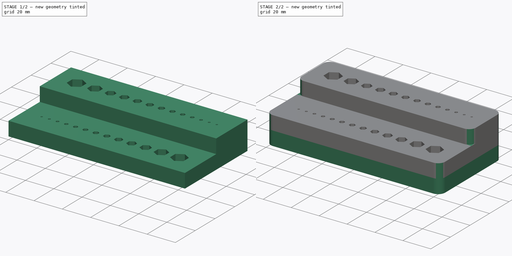
[diagram: build sequence overview — one tinted view per stage of 2, left to right]
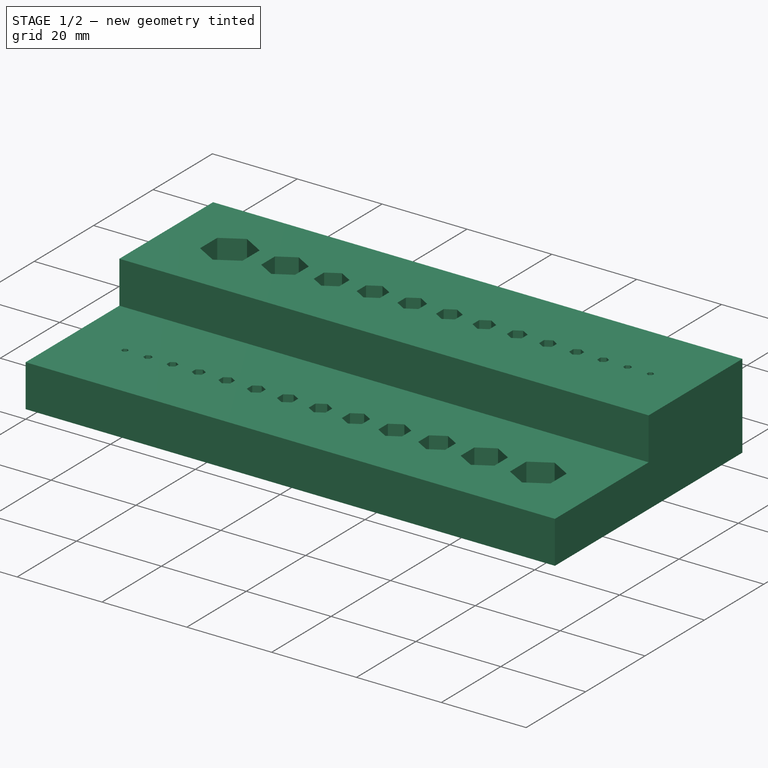
[diagram: stage 1 of 2 — iso view after this stage's code; geometry added in this stage tinted green]
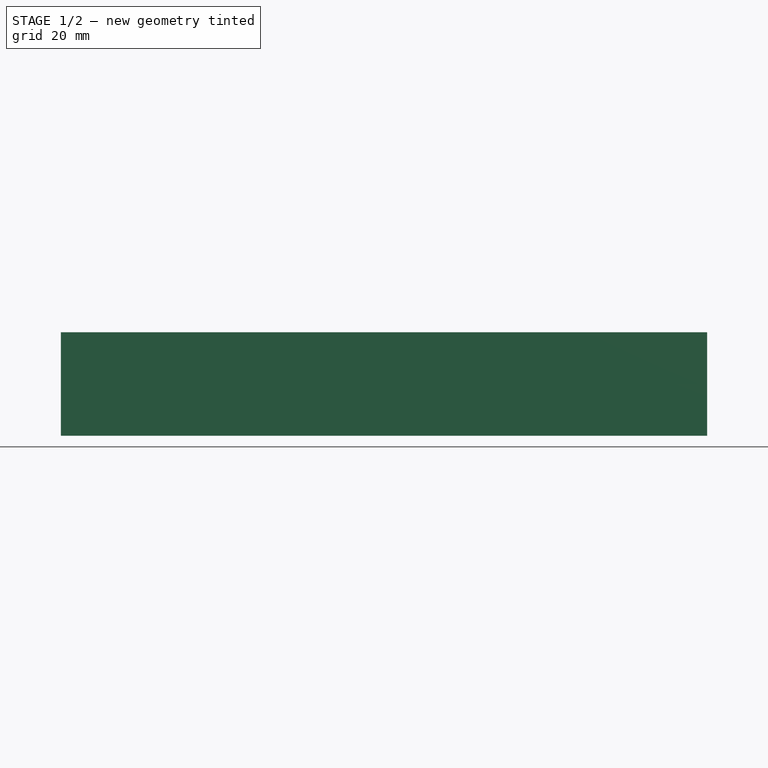
[diagram: stage 1 of 2 — front view after this stage's code; geometry added in this stage tinted green]
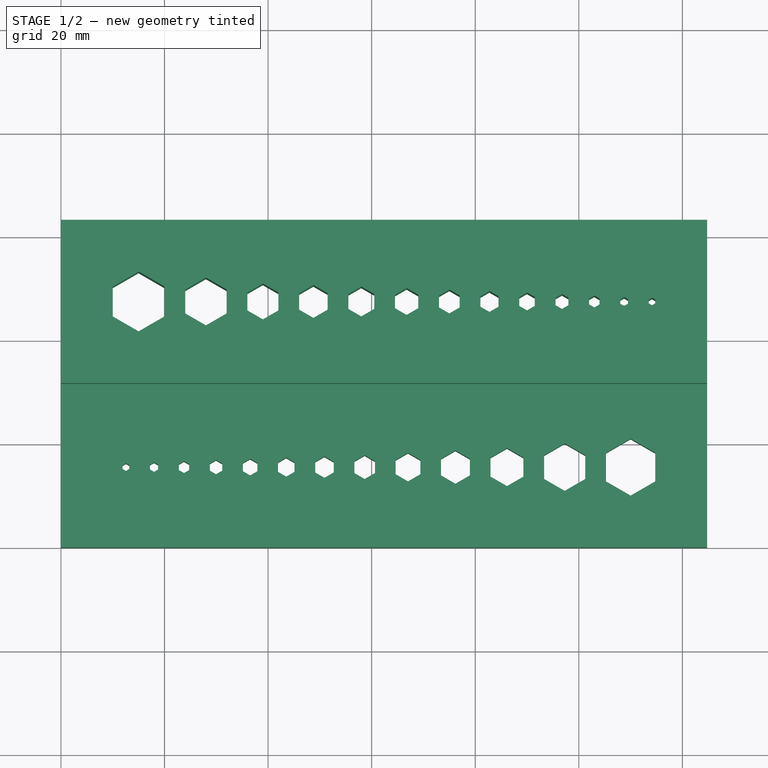
[diagram: stage 1 of 2 — top view after this stage's code; geometry added in this stage tinted green]
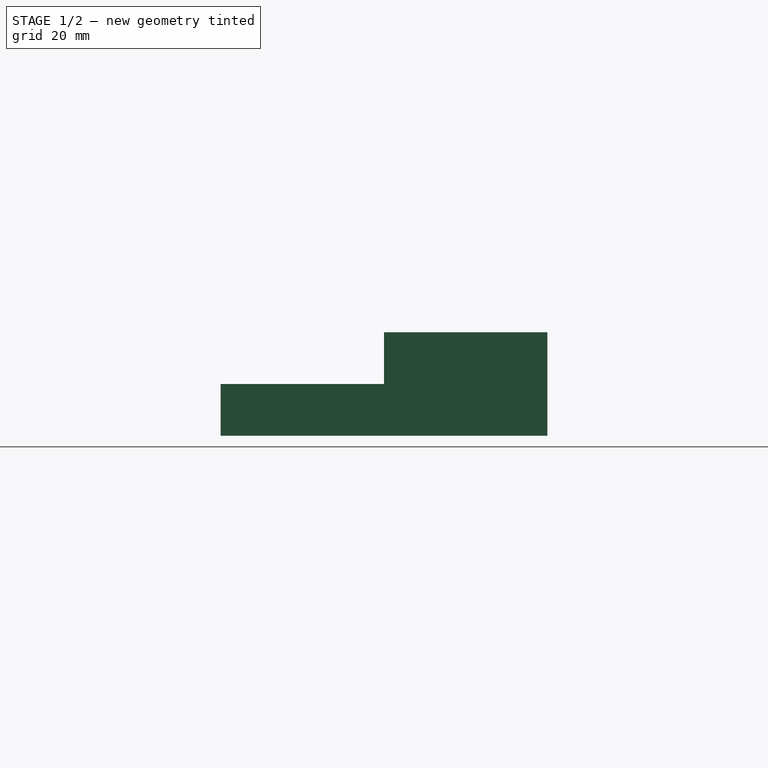
[diagram: stage 1 of 2 — right view after this stage's code; geometry added in this stage tinted green]
FCSTD DOCUMENT  (FreeCAD 0.19R23578 (Git))
Label: allen_caddy
License: All rights reserved
LicenseURL: http://en.wikipedia.org/wiki/All_rights_reserved
objects: Sketcher::SketchObject×3, PartDesign::Pad×2, Spreadsheet::Sheet×1, PartDesign::Pocket×1, PartDesign::Fillet×1, PartDesign::Body×1
note: 12 computed .brp shape members not serialized (recipe doc carries the construction recipe); baked Part::Feature solids carry a one-line shape summary decoded from their .brp

FEATURE [Sketcher::SketchObject] Sketch  label="Caddy Sketch"
  MapMode = 5
  Support = -> [XY_Plane]
  expr: Constraints[676] = <<Spreadsheet>>.SEPARATION
  expr: Constraints[274] = <<Spreadsheet>>.SEPARATION
  expr: Constraints[271] = <<Spreadsheet>>.SEPARATION
  expr: Constraints[679] = <<Spreadsheet>>.SEPARATION
  expr: Constraints[567] = 7 / 32 * 1in
  expr: Constraints[668] = 1 / 16 * 1in
  expr: Constraints[673] = <<Spreadsheet>>.SEPARATION
  expr: Constraints[570] = 9 / 64 * 1in
  expr: Constraints[669] = 0.05in
  expr: Constraints[573] = <<Spreadsheet>>.SEPARATION
  expr: Constraints[280] = <<Spreadsheet>>.SEPARATION
  expr: Constraints[275] = <<Spreadsheet>>.SEPARATION
  expr: Constraints[285] = <<Spreadsheet>>.BORDER
  expr: Constraints[282] = <<Spreadsheet>>.SEPARATION
  expr: Constraints[276] = <<Spreadsheet>>.SEPARATION
  expr: Constraints[447] = <<Spreadsheet>>.BORDER
  expr: Constraints[281] = <<Spreadsheet>>.SEPARATION
  expr: Constraints[666] = 3 / 32 * 1in
  expr: Constraints[270] = <<Spreadsheet>>.BORDER
  expr: Constraints[284] = <<Spreadsheet>>.BORDER
  expr: Constraints[449] = 1 / 4 * 1in
  expr: Constraints[273] = <<Spreadsheet>>.SEPARATION
  expr: Constraints[312] = 3 / 8 * 1in
  expr: Constraints[445] = <<Spreadsheet>>.BORDER
  expr: Constraints[278] = <<Spreadsheet>>.SEPARATION
  expr: Constraints[677] = <<Spreadsheet>>.SEPARATION
  expr: Constraints[279] = <<Spreadsheet>>.SEPARATION
  expr: Constraints[450] = <<Spreadsheet>>.SEPARATION
  expr: Constraints[283] = <<Spreadsheet>>.BORDER
  expr: Constraints[444] = 5 / 16 * 1in
  expr: Constraints[451] = <<Spreadsheet>>.SEPARATION
  expr: Constraints[568] = 3 / 16 * 1in
  expr: Constraints[272] = <<Spreadsheet>>.SEPARATION
  expr: Constraints[569] = 5 / 32 * 1in
  expr: Constraints[572] = <<Spreadsheet>>.SEPARATION
  expr: Constraints[571] = 1 / 8 * 1in
  expr: Constraints[667] = 5 / 64 * 1in
  expr: Constraints[574] = <<Spreadsheet>>.SEPARATION
  expr: Constraints[277] = <<Spreadsheet>>.SEPARATION
  expr: Constraints[575] = <<Spreadsheet>>.SEPARATION
  expr: Constraints[576] = <<Spreadsheet>>.SEPARATION
  expr: Constraints[671] = <<Spreadsheet>>.SEPARATION
  expr: Constraints[577] = 7 / 64 * 1in
  sketch-geometry (218):
    g0: LineSegment StartX=0 StartY=0 StartZ=0 EndX=124.77 EndY=0 EndZ=0
    g1: LineSegment StartX=124.77 StartY=0 StartZ=0 EndX=124.77 EndY=31.547 EndZ=0
    g2: LineSegment StartX=124.77 StartY=31.547 StartZ=0 EndX=0 EndY=31.547 EndZ=0
    g3: LineSegment StartX=0 StartY=31.547 StartZ=0 EndX=0 EndY=0 EndZ=0
    g4: LineSegment StartX=0 StartY=63.094 StartZ=0 EndX=124.77 EndY=63.094 EndZ=0
    g5: LineSegment StartX=124.77 StartY=63.094 StartZ=0 EndX=124.77 EndY=31.547 EndZ=0
    g6: LineSegment StartX=124.77 StartY=31.547 StartZ=0 EndX=0 EndY=31.547 EndZ=0
    g7: LineSegment StartX=0 StartY=31.547 StartZ=0 EndX=0 EndY=63.094 EndZ=0
    g8: LineSegment StartX=20 StartY=44.4338 StartZ=0 EndX=20 EndY=50.2073 EndZ=0
    g9: LineSegment StartX=20 StartY=50.2073 StartZ=0 EndX=15 EndY=53.094 EndZ=0
    g10: LineSegment StartX=15 StartY=53.094 StartZ=0 EndX=10 EndY=50.2073 EndZ=0
    g11: LineSegment StartX=10 StartY=50.2073 StartZ=0 EndX=10 EndY=44.4338 EndZ=0
    g12: LineSegment StartX=10 StartY=44.4338 StartZ=0 EndX=15 EndY=41.547 EndZ=0
    g13: LineSegment StartX=15 StartY=41.547 StartZ=0 EndX=20 EndY=44.4338 EndZ=0
    g14: Circle CenterX=15 CenterY=47.3205 CenterZ=0 NormalX=0 NormalY=0 NormalZ=1 AngleXU=0 Radius=5.7735
    g15: LineSegment StartX=32 StartY=45.0111 StartZ=0 EndX=32 EndY=49.6299 EndZ=0
    g16: LineSegment StartX=32 StartY=49.6299 StartZ=0 EndX=28 EndY=51.9393 EndZ=0
    g17: LineSegment StartX=28 StartY=51.9393 StartZ=0 EndX=24 EndY=49.6299 EndZ=0
    g18: LineSegment StartX=24 StartY=49.6299 StartZ=0 EndX=24 EndY=45.0111 EndZ=0
    g19: LineSegment StartX=24 StartY=45.0111 StartZ=0 EndX=28 EndY=42.7017 EndZ=0
    g20: LineSegment StartX=28 StartY=42.7017 StartZ=0 EndX=32 EndY=45.0111 EndZ=0
    g21: Circle CenterX=28 CenterY=47.3205 CenterZ=0 NormalX=0 NormalY=0 NormalZ=1 AngleXU=0 Radius=4.6188
    g22: LineSegment StartX=42 StartY=45.5885 StartZ=0 EndX=42 EndY=49.0526 EndZ=0
    g23: LineSegment StartX=42 StartY=49.0526 StartZ=0 EndX=39 EndY=50.7846 EndZ=0
    g24: LineSegment StartX=39 StartY=50.7846 StartZ=0 EndX=36 EndY=49.0526 EndZ=0
    g25: LineSegment StartX=36 StartY=49.0526 StartZ=0 EndX=36 EndY=45.5885 EndZ=0
    g26: LineSegment StartX=36 StartY=45.5885 StartZ=0 EndX=39 EndY=43.8564 EndZ=0
    g27: LineSegment StartX=39 StartY=43.8564 StartZ=0 EndX=42 EndY=45.5885 EndZ=0
    g28: Circle CenterX=39 CenterY=47.3205 CenterZ=0 NormalX=0 NormalY=0 NormalZ=1 AngleXU=0 Radius=3.4641
    g29: LineSegment StartX=51.5 StartY=45.7328 StartZ=0 EndX=51.5 EndY=48.9082 EndZ=0
    g30: LineSegment StartX=51.5 StartY=48.9082 StartZ=0 EndX=48.75 EndY=50.4959 EndZ=0
    g31: LineSegment StartX=48.75 StartY=50.4959 StartZ=0 EndX=46 EndY=48.9082 EndZ=0
    g32: LineSegment StartX=46 StartY=48.9082 StartZ=0 EndX=46 EndY=45.7328 EndZ=0
    g33: LineSegment StartX=46 StartY=45.7328 StartZ=0 EndX=48.75 EndY=44.1451 EndZ=0
    g34: LineSegment StartX=48.75 StartY=44.1451 StartZ=0 EndX=51.5 EndY=45.7328 EndZ=0
    g35: Circle CenterX=48.75 CenterY=47.3205 CenterZ=0 NormalX=0 NormalY=0 NormalZ=1 AngleXU=0 Radius=3.17543
    g36: LineSegment StartX=60.5 StartY=45.8771 StartZ=0 EndX=60.5 EndY=48.7639 EndZ=0
    g37: LineSegment StartX=60.5 StartY=48.7639 StartZ=0 EndX=58 EndY=50.2073 EndZ=0
    g38: LineSegment StartX=58 StartY=50.2073 StartZ=0 EndX=55.5 EndY=48.7639 EndZ=0
    g39: LineSegment StartX=55.5 StartY=48.7639 StartZ=0 EndX=55.5 EndY=45.8771 EndZ=0
    g40: LineSegment StartX=55.5 StartY=45.8771 StartZ=0 EndX=58 EndY=44.4338 EndZ=0
    g41: LineSegment StartX=58 StartY=44.4338 StartZ=0 EndX=60.5 EndY=45.8771 EndZ=0
    g42: Circle CenterX=58 CenterY=47.3205 CenterZ=0 NormalX=0 NormalY=0 NormalZ=1 AngleXU=0 Radius=2.88675
    g43: LineSegment StartX=69 StartY=46.0215 StartZ=0 EndX=69 EndY=48.6195 EndZ=0
    g44: LineSegment StartX=69 StartY=48.6195 StartZ=0 EndX=66.75 EndY=49.9186 EndZ=0
    g45: LineSegment StartX=66.75 StartY=49.9186 StartZ=0 EndX=64.5 EndY=48.6195 EndZ=0
    g46: LineSegment StartX=64.5 StartY=48.6195 StartZ=0 EndX=64.5 EndY=46.0215 EndZ=0
    g47: LineSegment StartX=64.5 StartY=46.0215 StartZ=0 EndX=66.75 EndY=44.7224 EndZ=0
    g48: LineSegment StartX=66.75 StartY=44.7224 StartZ=0 EndX=69 EndY=46.0215 EndZ=0
    g49: Circle CenterX=66.75 CenterY=47.3205 CenterZ=0 NormalX=0 NormalY=0 NormalZ=1 AngleXU=0 Radius=2.59808
    g50: LineSegment StartX=77 StartY=46.1658 StartZ=0 EndX=77 EndY=48.4752 EndZ=0
    g51: LineSegment StartX=77 StartY=48.4752 StartZ=0 EndX=75 EndY=49.6299 EndZ=0
    g52: LineSegment StartX=75 StartY=49.6299 StartZ=0 EndX=73 EndY=48.4752 EndZ=0
    g53: LineSegment StartX=73 StartY=48.4752 StartZ=0 EndX=73 EndY=46.1658 EndZ=0
    g54: LineSegment StartX=73 StartY=46.1658 StartZ=0 EndX=75 EndY=45.0111 EndZ=0
    g55: LineSegment StartX=75 StartY=45.0111 StartZ=0 EndX=77 EndY=46.1658 EndZ=0
    g56: Circle CenterX=75 CenterY=47.3205 CenterZ=0 NormalX=0 NormalY=0 NormalZ=1 AngleXU=0 Radius=2.3094
    g57: LineSegment StartX=84.5 StartY=46.3101 StartZ=0 EndX=84.5 EndY=48.3309 EndZ=0
    g58: LineSegment StartX=84.5 StartY=48.3309 StartZ=0 EndX=82.75 EndY=49.3412 EndZ=0
    g59: LineSegment StartX=82.75 StartY=49.3412 StartZ=0 EndX=81 EndY=48.3309 EndZ=0
    g60: LineSegment StartX=81 StartY=48.3309 StartZ=0 EndX=81 EndY=46.3101 EndZ=0
    g61: LineSegment StartX=81 StartY=46.3101 StartZ=0 EndX=82.75 EndY=45.2998 EndZ=0
    g62: LineSegment StartX=82.75 StartY=45.2998 StartZ=0 EndX=84.5 EndY=46.3101 EndZ=0
    g63: Circle CenterX=82.75 CenterY=47.3205 CenterZ=0 NormalX=0 NormalY=0 NormalZ=1 AngleXU=0 Radius=2.02073
    g64: LineSegment StartX=91.5 StartY=46.4545 StartZ=0 EndX=91.5 EndY=48.1865 EndZ=0
    g65: LineSegment StartX=91.5 StartY=48.1865 StartZ=0 EndX=90 EndY=49.0526 EndZ=0
    g66: LineSegment StartX=90 StartY=49.0526 StartZ=0 EndX=88.5 EndY=48.1865 EndZ=0
    g67: LineSegment StartX=88.5 StartY=48.1865 StartZ=0 EndX=88.5 EndY=46.4545 EndZ=0
    g68: LineSegment StartX=88.5 StartY=46.4545 StartZ=0 EndX=90 EndY=45.5885 EndZ=0
    g69: LineSegment StartX=90 StartY=45.5885 StartZ=0 EndX=91.5 EndY=46.4545 EndZ=0
    g70: Circle CenterX=90 CenterY=47.3205 CenterZ=0 NormalX=0 NormalY=0 NormalZ=1 AngleXU=0 Radius=1.73205
    g71: LineSegment StartX=98 StartY=46.5988 StartZ=0 EndX=98 EndY=48.0422 EndZ=0
    g72: LineSegment StartX=98 StartY=48.0422 StartZ=0 EndX=96.75 EndY=48.7639 EndZ=0
    g73: LineSegment StartX=96.75 StartY=48.7639 StartZ=0 EndX=95.5 EndY=48.0422 EndZ=0
    g74: LineSegment StartX=95.5 StartY=48.0422 StartZ=0 EndX=95.5 EndY=46.5988 EndZ=0
    g75: LineSegment StartX=95.5 StartY=46.5988 StartZ=0 EndX=96.75 EndY=45.8771 EndZ=0
    g76: LineSegment StartX=96.75 StartY=45.8771 StartZ=0 EndX=98 EndY=46.5988 EndZ=0
    g77: Circle CenterX=96.75 CenterY=47.3205 CenterZ=0 NormalX=0 NormalY=0 NormalZ=1 AngleXU=0 Radius=1.44338
    g78: LineSegment StartX=104 StartY=46.7432 StartZ=0 EndX=104 EndY=47.8979 EndZ=0
    g79: LineSegment StartX=104 StartY=47.8979 StartZ=0 EndX=103 EndY=48.4752 EndZ=0
    g80: LineSegment StartX=103 StartY=48.4752 StartZ=0 EndX=102 EndY=47.8979 EndZ=0
    g81: LineSegment StartX=102 StartY=47.8979 StartZ=0 EndX=102 EndY=46.7432 EndZ=0
    g82: LineSegment StartX=102 StartY=46.7432 StartZ=0 EndX=103 EndY=46.1658 EndZ=0
    g83: LineSegment StartX=103 StartY=46.1658 StartZ=0 EndX=104 EndY=46.7432 EndZ=0
    g84: Circle CenterX=103 CenterY=47.3205 CenterZ=0 NormalX=0 NormalY=0 NormalZ=1 AngleXU=0 Radius=1.1547
    g85: LineSegment StartX=109.5 StartY=46.8875 StartZ=0 EndX=109.5 EndY=47.7535 EndZ=0
    g86: LineSegment StartX=109.5 StartY=47.7535 StartZ=0 EndX=108.75 EndY=48.1865 EndZ=0
    g87: LineSegment StartX=108.75 StartY=48.1865 StartZ=0 EndX=108 EndY=47.7535 EndZ=0
    g88: LineSegment StartX=108 StartY=47.7535 StartZ=0 EndX=108 EndY=46.8875 EndZ=0
    g89: LineSegment StartX=108 StartY=46.8875 StartZ=0 EndX=108.75 EndY=46.4545 EndZ=0
    g90: LineSegment StartX=108.75 StartY=46.4545 StartZ=0 EndX=109.5 EndY=46.8875 EndZ=0
    g91: Circle CenterX=108.75 CenterY=47.3205 CenterZ=0 NormalX=0 NormalY=0 NormalZ=1 AngleXU=0 Radius=0.866025
    g92: LineSegment StartX=114.77 StartY=46.9539 StartZ=0 EndX=114.77 EndY=47.6871 EndZ=0
    g93: LineSegment StartX=114.77 StartY=47.6871 StartZ=0 EndX=114.135 EndY=48.0537 EndZ=0
    g94: LineSegment StartX=114.135 StartY=48.0537 StartZ=0 EndX=113.5 EndY=47.6871 EndZ=0
    g95: LineSegment StartX=113.5 StartY=47.6871 StartZ=0 EndX=113.5 EndY=46.9539 EndZ=0
    g96: LineSegment StartX=113.5 StartY=46.9539 StartZ=0 EndX=114.135 EndY=46.5873 EndZ=0
    g97: LineSegment StartX=114.135 StartY=46.5873 StartZ=0 EndX=114.77 EndY=46.9539 EndZ=0
    g98: Circle CenterX=114.135 CenterY=47.3205 CenterZ=0 NormalX=0 NormalY=0 NormalZ=1 AngleXU=0 Radius=0.733235
    g99: LineSegment StartX=0 StartY=47.3205 StartZ=0 EndX=124.77 EndY=47.3205 EndZ=0
    g100: LineSegment StartX=0 StartY=15.4993 StartZ=0 EndX=124.77 EndY=15.4993 EndZ=0
    g101: LineSegment StartX=110.007 StartY=20.9985 StartZ=0 EndX=105.245 EndY=18.2489 EndZ=0
    g102: LineSegment StartX=105.245 StartY=18.2489 StartZ=0 EndX=105.245 EndY=12.7496 EndZ=0
    g103: LineSegment StartX=105.245 StartY=12.7496 StartZ=0 EndX=110.007 EndY=10 EndZ=0
    g104: LineSegment StartX=110.007 StartY=10 StartZ=0 EndX=114.77 EndY=12.7496 EndZ=0
    g105: LineSegment StartX=114.77 StartY=12.7496 StartZ=0 EndX=114.77 EndY=18.2489 EndZ=0
    g106: LineSegment StartX=114.77 StartY=18.2489 StartZ=0 EndX=110.007 EndY=20.9985 EndZ=0
    g107: Circle CenterX=110.007 CenterY=15.4993 CenterZ=0 NormalX=0 NormalY=0 NormalZ=1 AngleXU=0 Radius=5.49926
    g108: LineSegment StartX=107.626 StartY=11.3748 StartZ=0 EndX=112.389 EndY=19.6237 EndZ=0
    g109: LineSegment StartX=114.452 StartY=47.8704 StartZ=0 EndX=113.817 EndY=46.7706 EndZ=0
    g110: LineSegment StartX=109.125 StartY=47.97 StartZ=0 EndX=108.375 EndY=46.671 EndZ=0
    g111: LineSegment StartX=102.5 StartY=46.4545 StartZ=0 EndX=103.5 EndY=48.1865 EndZ=0
    g112: LineSegment StartX=97.375 StartY=48.403 StartZ=0 EndX=96.125 EndY=46.238 EndZ=0
    g113: LineSegment StartX=90.75 StartY=48.6195 StartZ=0 EndX=89.25 EndY=46.0215 EndZ=0
    g114: LineSegment StartX=83.625 StartY=48.8361 StartZ=0 EndX=81.875 EndY=45.805 EndZ=0
    g115: LineSegment StartX=76 StartY=49.0526 StartZ=0 EndX=74 EndY=45.5885 EndZ=0
    g116: LineSegment StartX=67.875 StartY=49.2691 StartZ=0 EndX=65.625 EndY=45.372 EndZ=0
    g117: LineSegment StartX=59.25 StartY=49.4856 StartZ=0 EndX=56.75 EndY=45.1554 EndZ=0
    g118: LineSegment StartX=50.125 StartY=49.7021 StartZ=0 EndX=47.375 EndY=44.9389 EndZ=0
    g119: LineSegment StartX=40.5 StartY=49.9186 StartZ=0 EndX=37.5 EndY=44.7224 EndZ=0
    g120: LineSegment StartX=30 StartY=50.7846 StartZ=0 EndX=26 EndY=43.8564 EndZ=0
    g121: LineSegment StartX=17.5 StartY=51.6506 StartZ=0 EndX=12.5 EndY=42.9904 EndZ=0
    g122: LineSegment StartX=36.5341 StartY=17.1032 StartZ=0 EndX=35.145 EndY=16.3012 EndZ=0
    g123: LineSegment StartX=35.145 StartY=16.3012 StartZ=0 EndX=35.145 EndY=14.6973 EndZ=0
    g124: LineSegment StartX=35.145 StartY=14.6973 StartZ=0 EndX=36.5341 EndY=13.8953 EndZ=0
    g125: LineSegment StartX=36.5341 StartY=13.8953 StartZ=0 EndX=37.9231 EndY=14.6973 EndZ=0
    g126: LineSegment StartX=37.9231 StartY=14.6973 StartZ=0 EndX=37.9231 EndY=16.3012 EndZ=0
    g127: LineSegment StartX=37.9231 StartY=16.3012 StartZ=0 EndX=36.5341 EndY=17.1032 EndZ=0
    g128: Circle CenterX=36.5341 CenterY=15.4993 CenterZ=0 NormalX=0 NormalY=0 NormalZ=1 AngleXU=0 Radius=1.60395
    g129: LineSegment StartX=35.8395 StartY=14.2963 StartZ=0 EndX=37.2286 EndY=16.7022 EndZ=0
    g130: LineSegment StartX=97.2762 StartY=20.082 StartZ=0 EndX=93.3075 EndY=17.7906 EndZ=0
    g131: LineSegment StartX=93.3075 StartY=17.7906 StartZ=0 EndX=93.3075 EndY=13.2079 EndZ=0
    g132: LineSegment StartX=93.3075 StartY=13.2079 StartZ=0 EndX=97.2762 EndY=10.9165 EndZ=0
    g133: LineSegment StartX=97.2762 StartY=10.9165 StartZ=0 EndX=101.245 EndY=13.2079 EndZ=0
    g134: LineSegment StartX=101.245 StartY=13.2079 StartZ=0 EndX=101.245 EndY=17.7906 EndZ=0
    g135: LineSegment StartX=101.245 StartY=17.7906 StartZ=0 EndX=97.2762 EndY=20.082 EndZ=0
    g136: Circle CenterX=97.2762 CenterY=15.4993 CenterZ=0 NormalX=0 NormalY=0 NormalZ=1 AngleXU=0 Radius=4.58272
    g137: LineSegment StartX=95.2919 StartY=12.0622 StartZ=0 EndX=99.2606 EndY=18.9363 EndZ=0
    g138: LineSegment StartX=86.1325 StartY=19.1654 StartZ=0 EndX=82.9575 EndY=17.3323 EndZ=0
    g139: LineSegment StartX=82.9575 StartY=17.3323 StartZ=0 EndX=82.9575 EndY=13.6662 EndZ=0
    g140: LineSegment StartX=82.9575 StartY=13.6662 StartZ=0 EndX=86.1325 EndY=11.8331 EndZ=0
    g141: LineSegment StartX=86.1325 StartY=11.8331 StartZ=0 EndX=89.3075 EndY=13.6662 EndZ=0
    g142: LineSegment StartX=89.3075 StartY=13.6662 StartZ=0 EndX=89.3075 EndY=17.3323 EndZ=0
    g143: LineSegment StartX=89.3075 StartY=17.3323 StartZ=0 EndX=86.1325 EndY=19.1654 EndZ=0
    g144: Circle CenterX=86.1325 CenterY=15.4993 CenterZ=0 NormalX=0 NormalY=0 NormalZ=1 AngleXU=0 Radius=3.66617
    g145: LineSegment StartX=84.545 StartY=12.7496 StartZ=0 EndX=87.72 EndY=18.2489 EndZ=0
    g146: LineSegment StartX=76.1794 StartY=18.7072 StartZ=0 EndX=73.4012 EndY=17.1032 EndZ=0
    g147: LineSegment StartX=73.4012 StartY=17.1032 StartZ=0 EndX=73.4012 EndY=13.8953 EndZ=0
    g148: LineSegment StartX=73.4012 StartY=13.8953 StartZ=0 EndX=76.1794 EndY=12.2914 EndZ=0
    g149: LineSegment StartX=76.1794 StartY=12.2914 StartZ=0 EndX=78.9575 EndY=13.8953 EndZ=0
    g150: LineSegment StartX=78.9575 StartY=13.8953 StartZ=0 EndX=78.9575 EndY=17.1032 EndZ=0
    g151: LineSegment StartX=78.9575 StartY=17.1032 StartZ=0 EndX=76.1794 EndY=18.7072 EndZ=0
    g152: Circle CenterX=76.1794 CenterY=15.4993 CenterZ=0 NormalX=0 NormalY=0 NormalZ=1 AngleXU=0 Radius=3.2079
    g153: LineSegment StartX=74.7903 StartY=13.0933 StartZ=0 EndX=77.5684 EndY=17.9052 EndZ=0
    g154: LineSegment StartX=67.02 StartY=18.2489 StartZ=0 EndX=64.6387 EndY=16.8741 EndZ=0
    g155: LineSegment StartX=64.6387 StartY=16.8741 StartZ=0 EndX=64.6387 EndY=14.1244 EndZ=0
    g156: LineSegment StartX=64.6387 StartY=14.1244 StartZ=0 EndX=67.02 EndY=12.7496 EndZ=0
    g157: LineSegment StartX=67.02 StartY=12.7496 StartZ=0 EndX=69.4012 EndY=14.1244 EndZ=0
    g158: LineSegment StartX=69.4012 StartY=14.1244 StartZ=0 EndX=69.4012 EndY=16.8741 EndZ=0
    g159: LineSegment StartX=69.4012 StartY=16.8741 StartZ=0 EndX=67.02 EndY=18.2489 EndZ=0
    g160: Circle CenterX=67.02 CenterY=15.4993 CenterZ=0 NormalX=0 NormalY=0 NormalZ=1 AngleXU=0 Radius=2.74963
    g161: LineSegment StartX=65.8294 StartY=13.437 StartZ=0 EndX=68.2106 EndY=17.5615 EndZ=0
    g162: LineSegment StartX=58.6544 StartY=17.7906 StartZ=0 EndX=56.67 EndY=16.6449 EndZ=0
    g163: LineSegment StartX=56.67 StartY=16.6449 StartZ=0 EndX=56.67 EndY=14.3536 EndZ=0
    g164: LineSegment StartX=56.67 StartY=14.3536 StartZ=0 EndX=58.6544 EndY=13.2079 EndZ=0
    g165: LineSegment StartX=58.6544 StartY=13.2079 StartZ=0 EndX=60.6387 EndY=14.3536 EndZ=0
    g166: LineSegment StartX=60.6387 StartY=14.3536 StartZ=0 EndX=60.6387 EndY=16.6449 EndZ=0
    g167: LineSegment StartX=60.6387 StartY=16.6449 StartZ=0 EndX=58.6544 EndY=17.7906 EndZ=0
    g168: Circle CenterX=58.6544 CenterY=15.4993 CenterZ=0 NormalX=0 NormalY=0 NormalZ=1 AngleXU=0 Radius=2.29136
    g169: LineSegment StartX=57.6622 StartY=13.7807 StartZ=0 EndX=59.6466 EndY=17.2178 EndZ=0
    g170: LineSegment StartX=50.8841 StartY=17.5615 StartZ=0 EndX=49.0981 EndY=16.5304 EndZ=0
    g171: LineSegment StartX=49.0981 StartY=16.5304 StartZ=0 EndX=49.0981 EndY=14.4681 EndZ=0
    g172: LineSegment StartX=49.0981 StartY=14.4681 StartZ=0 EndX=50.8841 EndY=13.437 EndZ=0
    g173: LineSegment StartX=50.8841 StartY=13.437 StartZ=0 EndX=52.67 EndY=14.4681 EndZ=0
    g174: LineSegment StartX=52.67 StartY=14.4681 StartZ=0 EndX=52.67 EndY=16.5304 EndZ=0
    g175: LineSegment StartX=52.67 StartY=16.5304 StartZ=0 EndX=50.8841 EndY=17.5615 EndZ=0
    g176: Circle CenterX=50.8841 CenterY=15.4993 CenterZ=0 NormalX=0 NormalY=0 NormalZ=1 AngleXU=0 Radius=2.06222
    g177: LineSegment StartX=49.9911 StartY=13.9526 StartZ=0 EndX=51.777 EndY=17.0459 EndZ=0
    g178: LineSegment StartX=43.5106 StartY=17.3323 StartZ=0 EndX=41.9231 EndY=16.4158 EndZ=0
    g179: LineSegment StartX=41.9231 StartY=16.4158 StartZ=0 EndX=41.9231 EndY=14.5827 EndZ=0
    g180: LineSegment StartX=41.9231 StartY=14.5827 StartZ=0 EndX=43.5106 EndY=13.6662 EndZ=0
    g181: LineSegment StartX=43.5106 StartY=13.6662 StartZ=0 EndX=45.0981 EndY=14.5827 EndZ=0
    g182: LineSegment StartX=45.0981 StartY=14.5827 StartZ=0 EndX=45.0981 EndY=16.4158 EndZ=0
    g183: LineSegment StartX=45.0981 StartY=16.4158 StartZ=0 EndX=43.5106 EndY=17.3323 EndZ=0
    g184: Circle CenterX=43.5106 CenterY=15.4993 CenterZ=0 NormalX=0 NormalY=0 NormalZ=1 AngleXU=0 Radius=1.83309
    g185: LineSegment StartX=42.7169 StartY=14.1244 StartZ=0 EndX=44.3044 EndY=16.8741 EndZ=0
    g186: LineSegment StartX=29.9544 StartY=16.8741 StartZ=0 EndX=28.7637 EndY=16.1867 EndZ=0
    g187: LineSegment StartX=28.7637 StartY=16.1867 StartZ=0 EndX=28.7637 EndY=14.8119 EndZ=0
    g188: LineSegment StartX=28.7637 StartY=14.8119 StartZ=0 EndX=29.9544 EndY=14.1244 EndZ=0
    g189: LineSegment StartX=29.9544 StartY=14.1244 StartZ=0 EndX=31.145 EndY=14.8119 EndZ=0
    g190: LineSegment StartX=31.145 StartY=14.8119 StartZ=0 EndX=31.145 EndY=16.1867 EndZ=0
    g191: LineSegment StartX=31.145 StartY=16.1867 StartZ=0 EndX=29.9544 EndY=16.8741 EndZ=0
    g192: Circle CenterX=29.9544 CenterY=15.4993 CenterZ=0 NormalX=0 NormalY=0 NormalZ=1 AngleXU=0 Radius=1.37482
    g193: LineSegment StartX=29.3591 StartY=14.4681 StartZ=0 EndX=30.5497 EndY=16.5304 EndZ=0
    g194: LineSegment StartX=23.7716 StartY=16.6449 StartZ=0 EndX=22.7794 EndY=16.0721 EndZ=0
    g195: LineSegment StartX=22.7794 StartY=16.0721 StartZ=0 EndX=22.7794 EndY=14.9264 EndZ=0
    g196: LineSegment StartX=22.7794 StartY=14.9264 StartZ=0 EndX=23.7716 EndY=14.3536 EndZ=0
    g197: LineSegment StartX=23.7716 StartY=14.3536 StartZ=0 EndX=24.7637 EndY=14.9264 EndZ=0
    g198: LineSegment StartX=24.7637 StartY=14.9264 StartZ=0 EndX=24.7637 EndY=16.0721 EndZ=0
    g199: LineSegment StartX=24.7637 StartY=16.0721 StartZ=0 EndX=23.7716 EndY=16.6449 EndZ=0
    g200: Circle CenterX=23.7716 CenterY=15.4993 CenterZ=0 NormalX=0 NormalY=0 NormalZ=1 AngleXU=0 Radius=1.14568
    g201: LineSegment StartX=23.2755 StartY=14.64 StartZ=0 EndX=24.2677 EndY=16.3585 EndZ=0
    g202: LineSegment StartX=17.9856 StartY=16.4158 StartZ=0 EndX=17.1919 EndY=15.9575 EndZ=0
    g203: LineSegment StartX=17.1919 StartY=15.9575 StartZ=0 EndX=17.1919 EndY=15.041 EndZ=0
    g204: LineSegment StartX=17.1919 StartY=15.041 StartZ=0 EndX=17.9856 EndY=14.5827 EndZ=0
    g205: LineSegment StartX=17.9856 StartY=14.5827 StartZ=0 EndX=18.7794 EndY=15.041 EndZ=0
    g206: LineSegment StartX=18.7794 StartY=15.041 StartZ=0 EndX=18.7794 EndY=15.9575 EndZ=0
    g207: LineSegment StartX=18.7794 StartY=15.9575 StartZ=0 EndX=17.9856 EndY=16.4158 EndZ=0
    g208: Circle CenterX=17.9856 CenterY=15.4993 CenterZ=0 NormalX=0 NormalY=0 NormalZ=1 AngleXU=0 Radius=0.916544
    g209: LineSegment StartX=17.5887 StartY=14.8119 StartZ=0 EndX=18.3825 EndY=16.1867 EndZ=0
    g210: LineSegment StartX=12.5569 StartY=16.2325 StartZ=0 EndX=11.9219 EndY=15.8659 EndZ=0
    g211: LineSegment StartX=11.9219 StartY=15.8659 StartZ=0 EndX=11.9219 EndY=15.1326 EndZ=0
    g212: LineSegment StartX=11.9219 StartY=15.1326 StartZ=0 EndX=12.5569 EndY=14.766 EndZ=0
    g213: LineSegment StartX=12.5569 StartY=14.766 StartZ=0 EndX=13.1919 EndY=15.1326 EndZ=0
    g214: LineSegment StartX=13.1919 StartY=15.1326 StartZ=0 EndX=13.1919 EndY=15.8659 EndZ=0
    g215: LineSegment StartX=13.1919 StartY=15.8659 StartZ=0 EndX=12.5569 EndY=16.2325 EndZ=0
    g216: Circle CenterX=12.5569 CenterY=15.4993 CenterZ=0 NormalX=0 NormalY=0 NormalZ=1 AngleXU=0 Radius=0.733235
    g217: LineSegment StartX=12.2394 StartY=14.9493 StartZ=0 EndX=12.8744 EndY=16.0492 EndZ=0
  constraints (576):
    c: Coincident(g0,g1)
    c: Coincident(g1,g2)
    c: Coincident(g2,g3)
    c: Coincident(g3,g0)
    c: Horizontal(g0)
    c: Horizontal(g2)
    c: Vertical(g1)
    c: Vertical(g3)
    c: Coincident(g0,g-1)
    c: Coincident(g4,g5)
    c: Coincident(g5,g6)
    c: Coincident(g6,g7)
    c: Coincident(g7,g4)
    c: Horizontal(g4)
    c: Horizontal(g6)
    c: Vertical(g5)
    c: Vertical(g7)
    c: Coincident(g5,g1)
    c: Equal(g3,g7)
    c: Equal(g4,g0)
    c: Coincident(g8,g9)
    c: Coincident(g9,g10)
    c: Coincident(g10,g11)
    c: Coincident(g11,g12)
    c: Coincident(g12,g13)
    c: Coincident(g13,g8)
    c: Equal(g8, g9-g13) x5
    c: PointOnObject(g8,g14)
    c: PointOnObject(g9,g14)
    c: PointOnObject(g10,g14)
    c: PointOnObject(g11,g14)
    c: PointOnObject(g12,g14)
    c: PointOnObject(g13,g14)
    c: Coincident(g15,g16)
    c: Coincident(g16,g17)
    c: Coincident(g17,g18)
    c: Coincident(g18,g19)
    c: Coincident(g19,g20)
    c: Coincident(g20,g15)
    c: Equal(g15, g16-g20) x5
    c: PointOnObject(g15,g21)
    c: PointOnObject(g16,g21)
    c: PointOnObject(g17,g21)
    c: PointOnObject(g18,g21)
    c: PointOnObject(g19,g21)
    c: PointOnObject(g20,g21)
    c: Vertical(g11)
    c: Vertical(g18)
    c: Coincident(g22,g23)
    c: Coincident(g23,g24)
    c: Coincident(g24,g25)
    c: Coincident(g25,g26)
    c: Coincident(g26,g27)
    c: Coincident(g27,g22)
    c: Equal(g22, g23-g27) x5
    c: PointOnObject(g22,g28)
    c: PointOnObject(g23,g28)
    c: PointOnObject(g24,g28)
    c: PointOnObject(g25,g28)
    c: PointOnObject(g26,g28)
    c: PointOnObject(g27,g28)
    c: Vertical(g25)
    c: Coincident(g29,g30)
    c: Coincident(g30,g31)
    c: Coincident(g31,g32)
    c: Coincident(g32,g33)
    c: Coincident(g33,g34)
    c: Coincident(g34,g29)
    c: Equal(g29, g30-g34) x5
    c: PointOnObject(g29,g35)
    c: PointOnObject(g30,g35)
    c: PointOnObject(g31,g35)
    c: PointOnObject(g32,g35)
    c: PointOnObject(g33,g35)
    c: PointOnObject(g34,g35)
    c: Vertical(g32)
    c: Coincident(g36,g37)
    c: Coincident(g37,g38)
    c: Coincident(g38,g39)
    c: Coincident(g39,g40)
    c: Coincident(g40,g41)
    c: Coincident(g41,g36)
    c: Equal(g36, g37-g41) x5
    c: PointOnObject(g36,g42)
    c: PointOnObject(g37,g42)
    c: PointOnObject(g38,g42)
    c: PointOnObject(g39,g42)
    c: PointOnObject(g40,g42)
    c: PointOnObject(g41,g42)
    c: Vertical(g39)
    c: Coincident(g43,g44)
    c: Coincident(g44,g45)
    c: Coincident(g45,g46)
    c: Coincident(g46,g47)
    c: Coincident(g47,g48)
    c: Coincident(g48,g43)
    c: Equal(g43, g44-g48) x5
    c: PointOnObject(g43,g49)
    c: PointOnObject(g44,g49)
    c: PointOnObject(g45,g49)
    c: PointOnObject(g46,g49)
    c: PointOnObject(g47,g49)
    c: PointOnObject(g48,g49)
    c: Vertical(g46)
    c: Coincident(g50,g51)
    c: Coincident(g51,g52)
    c: Coincident(g52,g53)
    c: Coincident(g53,g54)
    c: Coincident(g54,g55)
    c: Coincident(g55,g50)
    c: Equal(g50, g51-g55) x5
    c: PointOnObject(g50,g56)
    c: PointOnObject(g51,g56)
    c: PointOnObject(g52,g56)
    c: PointOnObject(g53,g56)
    c: PointOnObject(g54,g56)
    c: PointOnObject(g55,g56)
    c: Vertical(g53)
    c: Coincident(g57,g58)
    c: Coincident(g58,g59)
    c: Coincident(g59,g60)
    c: Coincident(g60,g61)
    c: Coincident(g61,g62)
    c: Coincident(g62,g57)
    c: Equal(g57, g58-g62) x5
    c: PointOnObject(g57,g63)
    c: PointOnObject(g58,g63)
    c: PointOnObject(g59,g63)
    c: PointOnObject(g60,g63)
    c: PointOnObject(g61,g63)
    c: PointOnObject(g62,g63)
    c: Vertical(g60)
    c: Coincident(g64,g65)
    c: Coincident(g65,g66)
    c: Coincident(g66,g67)
    c: Coincident(g67,g68)
    c: Coincident(g68,g69)
    c: Coincident(g69,g64)
    c: Equal(g64, g65-g69) x5
    c: PointOnObject(g64,g70)
    c: PointOnObject(g65,g70)
    c: PointOnObject(g66,g70)
    c: PointOnObject(g67,g70)
    c: PointOnObject(g68,g70)
    c: PointOnObject(g69,g70)
    c: Vertical(g67)
    c: Coincident(g71,g72)
    c: Coincident(g72,g73)
    c: Coincident(g73,g74)
    c: Coincident(g74,g75)
    c: Coincident(g75,g76)
    c: Coincident(g76,g71)
    c: Equal(g71, g72-g76) x5
    c: PointOnObject(g71,g77)
    c: PointOnObject(g72,g77)
    c: PointOnObject(g73,g77)
    c: PointOnObject(g74,g77)
    c: PointOnObject(g75,g77)
    c: PointOnObject(g76,g77)
    c: Vertical(g74)
    c: Coincident(g78,g79)
    c: Coincident(g79,g80)
    c: Coincident(g80,g81)
    c: Coincident(g81,g82)
    c: Coincident(g82,g83)
    c: Coincident(g83,g78)
    c: Equal(g78, g79-g83) x5
    c: PointOnObject(g78,g84)
    c: PointOnObject(g79,g84)
    c: PointOnObject(g80,g84)
    c: PointOnObject(g81,g84)
    c: PointOnObject(g82,g84)
    c: PointOnObject(g83,g84)
    c: Vertical(g81)
    c: Coincident(g85,g86)
    c: Coincident(g86,g87)
    c: Coincident(g87,g88)
    c: Coincident(g88,g89)
    c: Coincident(g89,g90)
    c: Coincident(g90,g85)
    c: Equal(g85, g86-g90) x5
    c: PointOnObject(g85,g91)
    c: PointOnObject(g86,g91)
    c: PointOnObject(g87,g91)
    c: PointOnObject(g88,g91)
    c: PointOnObject(g89,g91)
    c: PointOnObject(g90,g91)
    c: Vertical(g88)
    c: Coincident(g92,g93)
    c: Coincident(g93,g94)
    c: Coincident(g94,g95)
    c: Coincident(g95,g96)
    c: Coincident(g96,g97)
    c: Coincident(g97,g92)
    c: Equal(g92, g93-g97) x5
    c: PointOnObject(g92,g98)
    c: PointOnObject(g93,g98)
    c: PointOnObject(g94,g98)
    c: PointOnObject(g95,g98)
    c: PointOnObject(g96,g98)
    c: PointOnObject(g97,g98)
    c: Vertical(g95)
    c: PointOnObject(g99,g7)
    c: Horizontal(g99)
    c: PointOnObject(g99,g5)
    c: PointOnObject(g14,g99)
    c: PointOnObject(g21,g99)
    c: PointOnObject(g28,g99)
    c: PointOnObject(g35,g99)
    c: PointOnObject(g42,g99)
    c: PointOnObject(g49,g99)
    c: PointOnObject(g56,g99)
    c: PointOnObject(g63,g99)
    c: PointOnObject(g70,g99)
    c: PointOnObject(g77,g99)
    c: PointOnObject(g84,g99)
    c: PointOnObject(g91,g99)
    c: PointOnObject(g98,g99)
    c: DistanceX(g99,g10) = 10
    c: DistanceX(g8,g17) = 4
    c: DistanceX(g15,g24) = 4
    c: DistanceX(g22,g31) = 4
    c: DistanceX(g29,g38) = 4
    c: DistanceX(g36,g45) = 4
    c: DistanceX(g43,g52) = 4
    c: DistanceX(g50,g59) = 4
    c: DistanceX(g57,g66) = 4
    c: DistanceX(g64,g73) = 4
    c: DistanceX(g71,g80) = 4
    c: DistanceX(g78,g87) = 4
    c: DistanceX(g85,g94) = 4
    c: DistanceY(g9,g4) = 10
    c: DistanceY(g2,g12) = 10
    c: DistanceX(g92,g99) = 10
    c: PointOnObject(g100,g3)
    c: PointOnObject(g100,g1)
    c: Horizontal(g100)
    c: Coincident(g101,g102)
    c: Coincident(g102,g103)
    c: Coincident(g103,g104)
    c: Coincident(g104,g105)
    c: Coincident(g105,g106)
    c: Coincident(g106,g101)
    c: Equal(g101, g102-g106) x5
    c: PointOnObject(g101,g107)
    c: PointOnObject(g102,g107)
    c: PointOnObject(g103,g107)
    c: PointOnObject(g104,g107)
    c: PointOnObject(g105,g107)
    c: PointOnObject(g106,g107)
    c: PointOnObject(g107,g100)
    c: Vertical(g102)
    c: PointOnObject(g108,g103)
    c: PointOnObject(g108,g106)
    c: PointOnObject(g107,g108)
    c: Perpendicular(g103,g108)
    c: Distance(g108) = 9.525
    c: PointOnObject(g109,g93)
    c: PointOnObject(g109,g96)
    c: PointOnObject(g98,g109)
    c: Perpendicular(g109,g96)
    c: Distance(g109) = 1.27
    c: PointOnObject(g110,g86)
    c: PointOnObject(g110,g89)
    c: PointOnObject(g91,g110)
    c: Perpendicular(g89,g110)
    c: Distance(g110) = 1.5
    c: PointOnObject(g111,g82)
    c: PointOnObject(g111,g79)
    c: PointOnObject(g84,g111)
    c: Perpendicular(g82,g111)
    c: Distance(g111) = 2
    c: PointOnObject(g112,g72)
    c: PointOnObject(g112,g75)
    c: Perpendicular(g112,g75)
    c: PointOnObject(g77,g112)
    c: Distance(g112) = 2.5
    c: PointOnObject(g113,g65)
    c: PointOnObject(g113,g68)
    c: Perpendicular(g113,g68)
    c: PointOnObject(g70,g113)
    c: Distance(g113) = 3
    c: PointOnObject(g114,g58)
    c: PointOnObject(g114,g61)
    c: Perpendicular(g61,g114)
    c: PointOnObject(g63,g114)
    c: Distance(g114) = 3.5
    c: PointOnObject(g115,g51)
    c: PointOnObject(g115,g54)
    c: PointOnObject(g56,g115)
    c: Perpendicular(g54,g115)
    c: Distance(g115) = 4
    c: PointOnObject(g116,g44)
    c: PointOnObject(g116,g47)
    c: PointOnObject(g49,g116)
    c: Perpendicular(g47,g116)
    c: Distance(g116) = 4.5
    c: PointOnObject(g117,g37)
    c: PointOnObject(g117,g40)
    c: PointOnObject(g42,g117)
    c: Perpendicular(g40,g117)
    c: Distance(g117) = 5
    c: PointOnObject(g118,g30)
    c: PointOnObject(g118,g33)
    c: PointOnObject(g35,g118)
    c: Perpendicular(g33,g118)
    c: Distance(g118) = 5.5
    c: PointOnObject(g119,g23)
    c: PointOnObject(g119,g26)
    c: PointOnObject(g28,g119)
    c: Perpendicular(g26,g119)
    c: Distance(g119) = 6
    c: PointOnObject(g120,g16)
    c: PointOnObject(g120,g19)
    c: PointOnObject(g21,g120)
    c: Perpendicular(g19,g120)
    c: Distance(g120) = 8
    c: PointOnObject(g121,g9)
    c: PointOnObject(g121,g12)
    c: PointOnObject(g14,g121)
    c: Perpendicular(g12,g121)
    c: Distance(g121) = 10
    c: Coincident(g122,g123)
    c: Coincident(g123,g124)
    c: Coincident(g124,g125)
    c: Coincident(g125,g126)
    c: Coincident(g126,g127)
    c: Coincident(g127,g122)
    c: Equal(g122, g123-g127) x5
    c: PointOnObject(g122,g128)
    c: PointOnObject(g123,g128)
    c: PointOnObject(g124,g128)
    c: PointOnObject(g125,g128)
    c: PointOnObject(g126,g128)
    c: PointOnObject(g127,g128)
    c: Vertical(g123)
    c: PointOnObject(g129,g124)
    c: PointOnObject(g129,g127)
    c: PointOnObject(g128,g129)
    c: Perpendicular(g124,g129)
    c: Coincident(g130,g131)
    c: Coincident(g131,g132)
    c: Coincident(g132,g133)
    c: Coincident(g133,g134)
    c: Coincident(g134,g135)
    c: Coincident(g135,g130)
    c: Equal(g130, g131-g135) x5
    c: PointOnObject(g130,g136)
    c: PointOnObject(g131,g136)
    c: PointOnObject(g132,g136)
    c: PointOnObject(g133,g136)
    c: PointOnObject(g134,g136)
    c: PointOnObject(g135,g136)
    c: Vertical(g131)
    c: PointOnObject(g137,g132)
    c: PointOnObject(g137,g135)
    c: PointOnObject(g136,g137)
    c: Perpendicular(g132,g137)
    c: Coincident(g138,g139)
    c: Coincident(g139,g140)
    c: Coincident(g140,g141)
    c: Coincident(g141,g142)
    c: Coincident(g142,g143)
    c: Coincident(g143,g138)
    c: Equal(g138, g139-g143) x5
    c: PointOnObject(g138,g144)
    c: PointOnObject(g139,g144)
    c: PointOnObject(g140,g144)
    c: PointOnObject(g141,g144)
    c: PointOnObject(g142,g144)
    c: PointOnObject(g143,g144)
    c: Vertical(g139)
    c: PointOnObject(g145,g140)
    c: PointOnObject(g145,g143)
    c: PointOnObject(g144,g145)
    c: Perpendicular(g140,g145)
    c: Distance(g137) = 7.9375
    c: DistanceX(g105,g100) = 10
    c: PointOnObject(g136,g100)
    c: DistanceY(g0,g103) = 10
    c: PointOnObject(g144,g100)
    c: Distance(g145) = 6.35
    c: DistanceX(g134,g101) = 4
    c: DistanceX(g142,g130) = 4
    c: Coincident(g146,g147)
    c: Coincident(g147,g148)
    c: Coincident(g148,g149)
    c: Coincident(g149,g150)
    c: Coincident(g150,g151)
    c: Coincident(g151,g146)
    c: Equal(g146, g147-g151) x5
    c: PointOnObject(g146,g152)
    c: PointOnObject(g147,g152)
    c: PointOnObject(g148,g152)
    c: PointOnObject(g149,g152)
    c: PointOnObject(g150,g152)
    c: PointOnObject(g151,g152)
    c: Vertical(g147)
    c: PointOnObject(g153,g148)
    c: PointOnObject(g153,g151)
    c: PointOnObject(g152,g153)
    c: Perpendicular(g148,g153)
    c: Coincident(g154,g155)
    c: Coincident(g155,g156)
    c: Coincident(g156,g157)
    c: Coincident(g157,g158)
    c: Coincident(g158,g159)
    c: Coincident(g159,g154)
    c: Equal(g154, g155-g159) x5
    c: PointOnObject(g154,g160)
    c: PointOnObject(g155,g160)
    c: PointOnObject(g156,g160)
    c: PointOnObject(g157,g160)
    c: PointOnObject(g158,g160)
    c: PointOnObject(g159,g160)
    c: Vertical(g155)
    c: PointOnObject(g161,g156)
    c: PointOnObject(g161,g159)
    c: PointOnObject(g160,g161)
    c: Perpendicular(g156,g161)
    c: Coincident(g162,g163)
    c: Coincident(g163,g164)
    c: Coincident(g164,g165)
    c: Coincident(g165,g166)
    c: Coincident(g166,g167)
    c: Coincident(g167,g162)
    c: Equal(g162, g163-g167) x5
    c: PointOnObject(g162,g168)
    c: PointOnObject(g163,g168)
    c: PointOnObject(g164,g168)
    c: PointOnObject(g165,g168)
    c: PointOnObject(g166,g168)
    c: PointOnObject(g167,g168)
    c: Vertical(g163)
    c: PointOnObject(g169,g164)
    c: PointOnObject(g169,g167)
    c: PointOnObject(g168,g169)
    c: Perpendicular(g164,g169)
    c: Coincident(g170,g171)
    c: Coincident(g171,g172)
    c: Coincident(g172,g173)
    c: Coincident(g173,g174)
    c: Coincident(g174,g175)
    c: Coincident(g175,g170)
    c: Equal(g170, g171-g175) x5
    c: PointOnObject(g170,g176)
    c: PointOnObject(g171,g176)
    c: PointOnObject(g172,g176)
    c: PointOnObject(g173,g176)
    c: PointOnObject(g174,g176)
    c: PointOnObject(g175,g176)
    c: Vertical(g171)
    c: PointOnObject(g177,g172)
    c: PointOnObject(g177,g175)
    c: PointOnObject(g176,g177)
    c: Perpendicular(g172,g177)
    c: Coincident(g178,g179)
    c: Coincident(g179,g180)
    c: Coincident(g180,g181)
    c: Coincident(g181,g182)
    c: Coincident(g182,g183)
    c: Coincident(g183,g178)
    c: Equal(g178, g179-g183) x5
    c: PointOnObject(g178,g184)
    c: PointOnObject(g179,g184)
    c: PointOnObject(g180,g184)
    c: PointOnObject(g181,g184)
    c: PointOnObject(g182,g184)
    c: PointOnObject(g183,g184)
    c: Vertical(g179)
    c: PointOnObject(g185,g180)
    c: PointOnObject(g185,g183)
    c: PointOnObject(g184,g185)
    c: Perpendicular(g180,g185)
    c: PointOnObject(g152,g100)
    c: PointOnObject(g160,g100)
    c: PointOnObject(g168,g100)
    c: PointOnObject(g176,g100)
    c: PointOnObject(g184,g100)
    c: Distance(g153) = 5.55625
    c: Distance(g161) = 4.7625
    c: Distance(g169) = 3.96875
    c: Distance(g177) = 3.57187
    c: Distance(g185) = 3.175
    c: DistanceX(g150,g138) = 4
    c: DistanceX(g158,g146) = 4
    c: DistanceX(g166,g154) = 4
    c: DistanceX(g174,g162) = 4
    c: DistanceX(g182,g170) = 4
    c: Distance(g129) = 2.77812
    c: Coincident(g186,g187)
    c: Coincident(g187,g188)
    c: Coincident(g188,g189)
    c: Coincident(g189,g190)
    c: Coincident(g190,g191)
    c: Coincident(g191,g186)
    c: Equal(g186, g187-g191) x5
    c: PointOnObject(g186,g192)
    c: PointOnObject(g187,g192)
    c: PointOnObject(g188,g192)
    c: PointOnObject(g189,g192)
    c: PointOnObject(g190,g192)
    c: PointOnObject(g191,g192)
    c: Vertical(g187)
    c: PointOnObject(g193,g188)
    c: PointOnObject(g193,g191)
    c: PointOnObject(g192,g193)
    c: Perpendicular(g188,g193)
    c: Coincident(g194,g195)
    c: Coincident(g195,g196)
    c: Coincident(g196,g197)
    c: Coincident(g197,g198)
    c: Coincident(g198,g199)
    c: Coincident(g199,g194)
    c: Equal(g194, g195-g199) x5
    c: PointOnObject(g194,g200)
    c: PointOnObject(g195,g200)
    c: PointOnObject(g196,g200)
    c: PointOnObject(g197,g200)
    c: PointOnObject(g198,g200)
    c: PointOnObject(g199,g200)
    c: Vertical(g195)
    c: PointOnObject(g201,g196)
    c: PointOnObject(g201,g199)
    c: PointOnObject(g200,g201)
    c: Perpendicular(g196,g201)
    c: Coincident(g202,g203)
    c: Coincident(g203,g204)
    c: Coincident(g204,g205)
    c: Coincident(g205,g206)
    c: Coincident(g206,g207)
    c: Coincident(g207,g202)
    c: Equal(g202, g203-g207) x5
    c: PointOnObject(g202,g208)
    c: PointOnObject(g203,g208)
    c: PointOnObject(g204,g208)
    c: PointOnObject(g205,g208)
    c: PointOnObject(g206,g208)
    c: PointOnObject(g207,g208)
    c: Vertical(g203)
    c: PointOnObject(g209,g204)
    c: PointOnObject(g209,g207)
    c: PointOnObject(g208,g209)
    c: Perpendicular(g204,g209)
    c: Coincident(g210,g211)
    c: Coincident(g211,g212)
    c: Coincident(g212,g213)
    c: Coincident(g213,g214)
    c: Coincident(g214,g215)
    c: Coincident(g215,g210)
    c: Equal(g210, g211-g215) x5
    c: PointOnObject(g210,g216)
    c: PointOnObject(g211,g216)
    c: PointOnObject(g212,g216)
    c: PointOnObject(g213,g216)
    c: PointOnObject(g214,g216)
    c: PointOnObject(g215,g216)
    c: Vertical(g211)
    c: PointOnObject(g217,g212)
    c: PointOnObject(g217,g215)
    c: PointOnObject(g216,g217)
    c: Perpendicular(g212,g217)
    c: Distance(g193) = 2.38125
    c: Distance(g201) = 1.98438
    c: Distance(g209) = 1.5875
    c: Distance(g217) = 1.27
    c: PointOnObject(g128,g100)
    c: DistanceX(g126,g178) = 4
    c: PointOnObject(g192,g100)
    c: DistanceX(g190,g122) = 4
    c: PointOnObject(g200,g100)
    c: PointOnObject(g208,g100)
    c: DistanceX(g198,g186) = 4
    c: DistanceX(g206,g194) = 4
    c: PointOnObject(g216,g100)
    c: DistanceX(g214,g202) = 4
FEATURE [Spreadsheet::Sheet] Spreadsheet
  cells = A1=SEPARATION; B1(SEPARATION)=4; A2=BORDER; B2(BORDER)=10; A3=HEIGHT; B3(HEIGHT)=20; A4=STEP; B4(STEP)=10; A5=BASE; B5(BASE)=10; A6=FILLET; B6(FILLET)=5
FEATURE [PartDesign::Pad] Pad  label="Caddy"
  Direction = (1,1,1)
  Length = 20
  Length2 = 100
  Profile = -> Sketch
  Type = 0
  expr: Length = <<Spreadsheet>>.HEIGHT
FEATURE [Sketcher::SketchObject] Sketch001  label="Step Sketch"
  ExternalGeometry = -> [Pad]
  MapMode = 5
  Placement = pos=(0,0,20) rot=(0,0,1;0rad)
  Support = -> [Pad]
  sketch-geometry (4):
    g0: LineSegment StartX=0 StartY=31.547 StartZ=0 EndX=124.77 EndY=31.547 EndZ=0
    g1: LineSegment StartX=124.77 StartY=31.547 StartZ=0 EndX=124.77 EndY=0 EndZ=0
    g2: LineSegment StartX=124.77 StartY=0 StartZ=0 EndX=0 EndY=0 EndZ=0
    g3: LineSegment StartX=0 StartY=0 StartZ=0 EndX=0 EndY=31.547 EndZ=0
  constraints (10):
    c: Coincident(g0,g1)
    c: Coincident(g1,g2)
    c: Coincident(g2,g3)
    c: Coincident(g3,g0)
    c: Horizontal(g0)
    c: Horizontal(g2)
    c: Vertical(g1)
    c: Vertical(g3)
    c: Coincident(g0,g-8)
    c: Coincident(g1,g-6)
FEATURE [PartDesign::Pocket] Pocket  label="Step"
  BaseFeature = -> Pad
  Length = 10
  Length2 = 100
  Profile = -> Sketch001
  Type = 0
  expr: Length = <<Spreadsheet>>.STEP
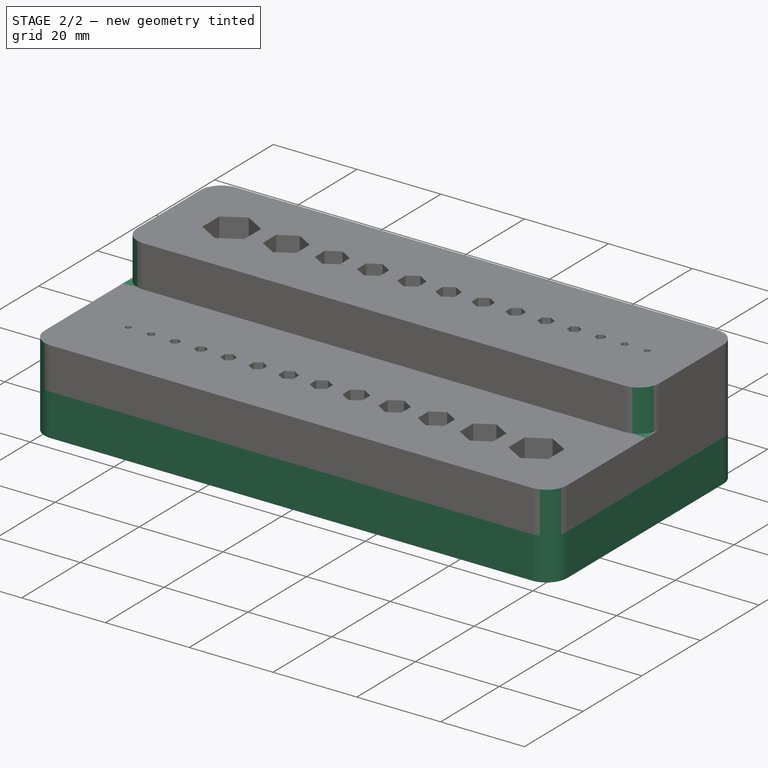
[diagram: stage 2 of 2 — iso view after this stage's code; geometry added in this stage tinted green]
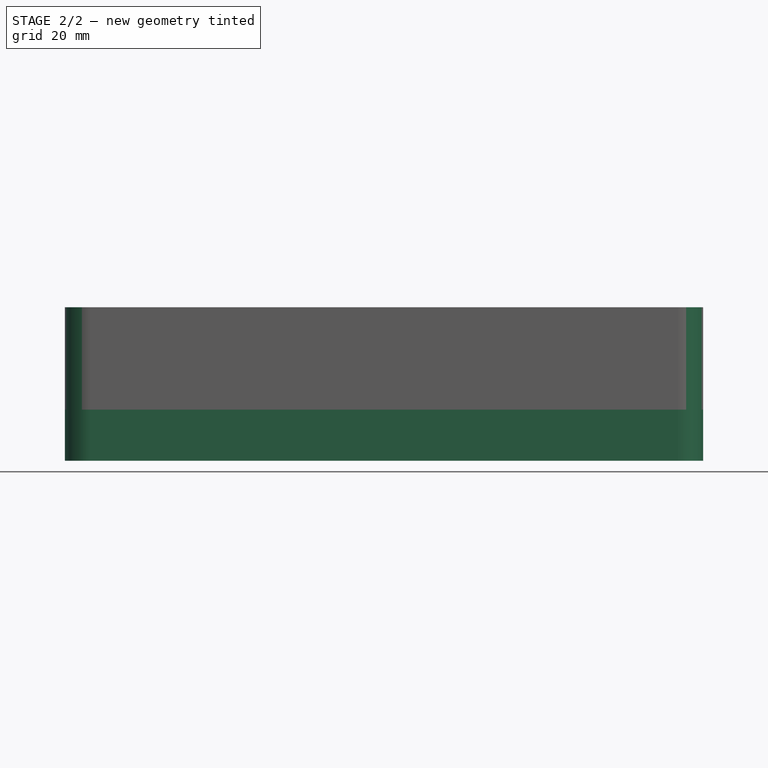
[diagram: stage 2 of 2 — front view after this stage's code; geometry added in this stage tinted green]
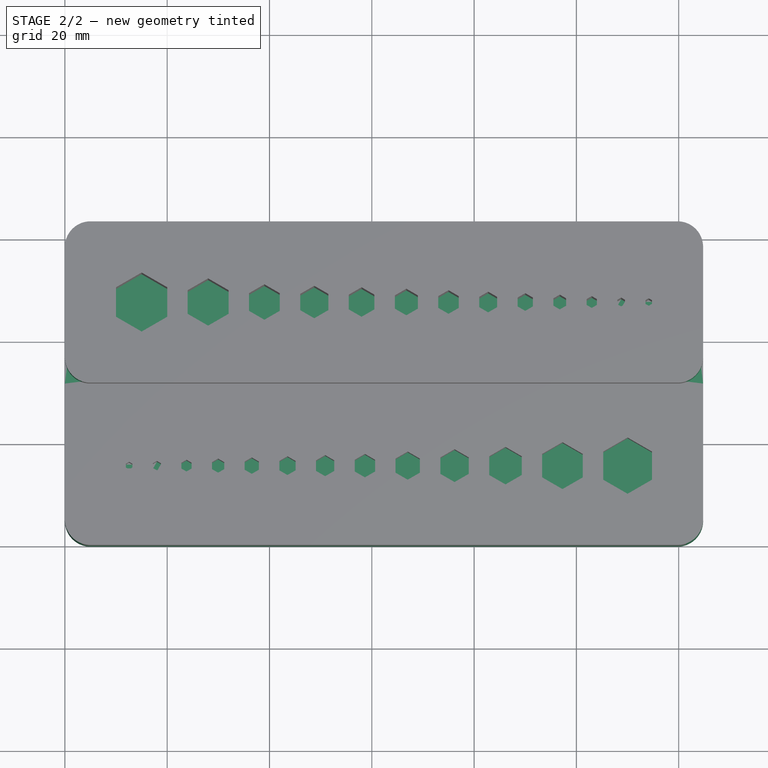
[diagram: stage 2 of 2 — top view after this stage's code; geometry added in this stage tinted green]
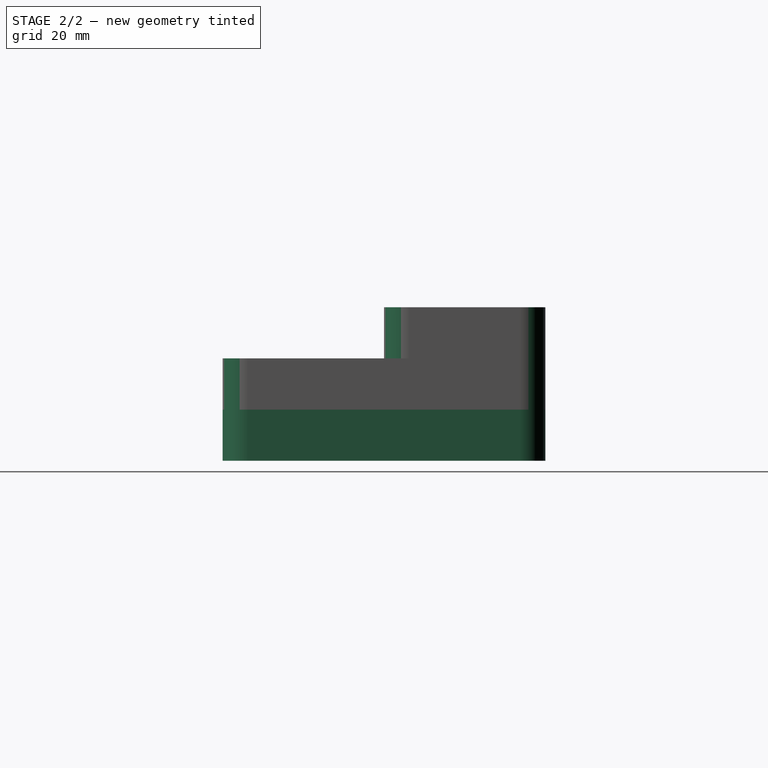
[diagram: stage 2 of 2 — right view after this stage's code; geometry added in this stage tinted green]
FEATURE [Sketcher::SketchObject] Sketch002  label="Base Sketch"
  ExternalGeometry = -> [Pocket]
  MapMode = 5
  Placement = pos=(0,0,0) rot=(1,0,0;3.14159rad)
  Support = -> [Pocket]
  sketch-geometry (4):
    g0: LineSegment StartX=0 StartY=0 StartZ=0 EndX=124.77 EndY=0 EndZ=0
    g1: LineSegment StartX=124.77 StartY=0 StartZ=0 EndX=124.77 EndY=-63.094 EndZ=0
    g2: LineSegment StartX=124.77 StartY=-63.094 StartZ=0 EndX=0 EndY=-63.094 EndZ=0
    g3: LineSegment StartX=0 StartY=-63.094 StartZ=0 EndX=0 EndY=0 EndZ=0
  constraints (10):
    c: Coincident(g0,g1)
    c: Coincident(g1,g2)
    c: Coincident(g2,g3)
    c: Coincident(g3,g0)
    c: Horizontal(g0)
    c: Horizontal(g2)
    c: Vertical(g1)
    c: Vertical(g3)
    c: Coincident(g0,g-1)
    c: Coincident(g1,g-5)
FEATURE [PartDesign::Pad] Pad001  label="Base"
  BaseFeature = -> Pocket
  Direction = (1,1,1)
  Length = 10
  Length2 = 100
  Profile = -> Sketch002
  Type = 0
  expr: Length = <<Spreadsheet>>.BASE
FEATURE [PartDesign::Fillet] Fillet
  Base = -> Pad001 [Edge261,Edge95,Edge103,Edge10,Edge98,Edge2,Edge6,Edge92,Edge93,Edge5]
  BaseFeature = -> Pad001
  Radius = 5
  SupportTransform = false
  expr: Radius = <<Spreadsheet>>.FILLET
FEATURE [PartDesign::Body] Body
  Group = -> [Sketch,Pad,Sketch001,Pocket,Sketch002,Pad001,Fillet]
  Origin = -> Origin
  Tip = -> Fillet
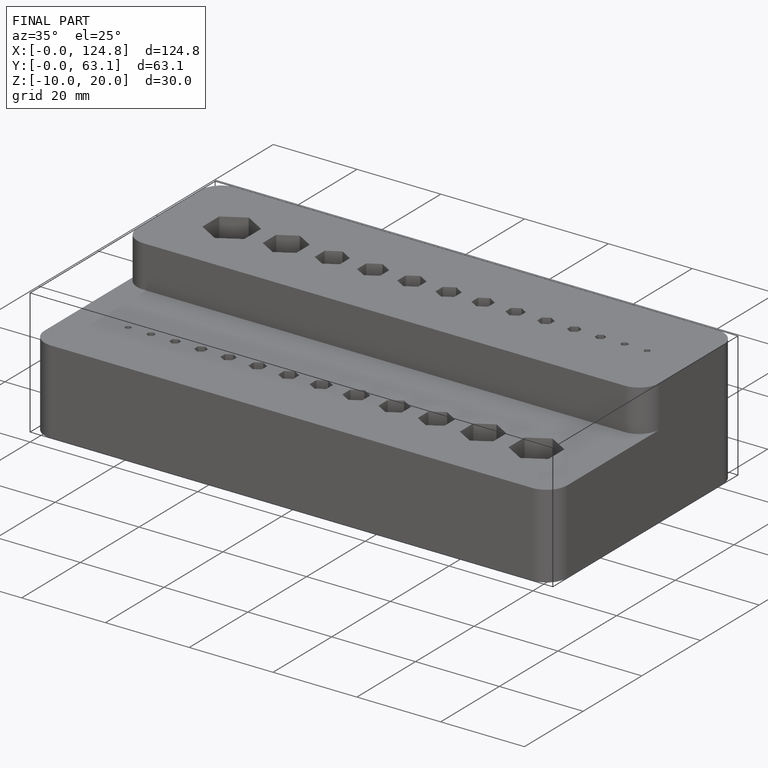
[diagram: finished part — iso view with bounding-box wireframe]
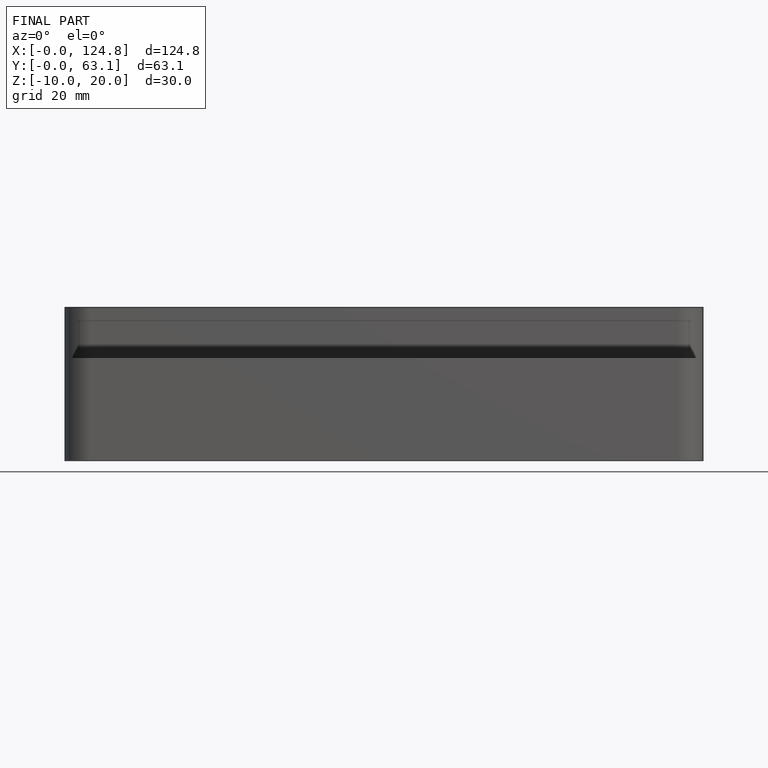
[diagram: finished part — front view with bounding-box wireframe]
